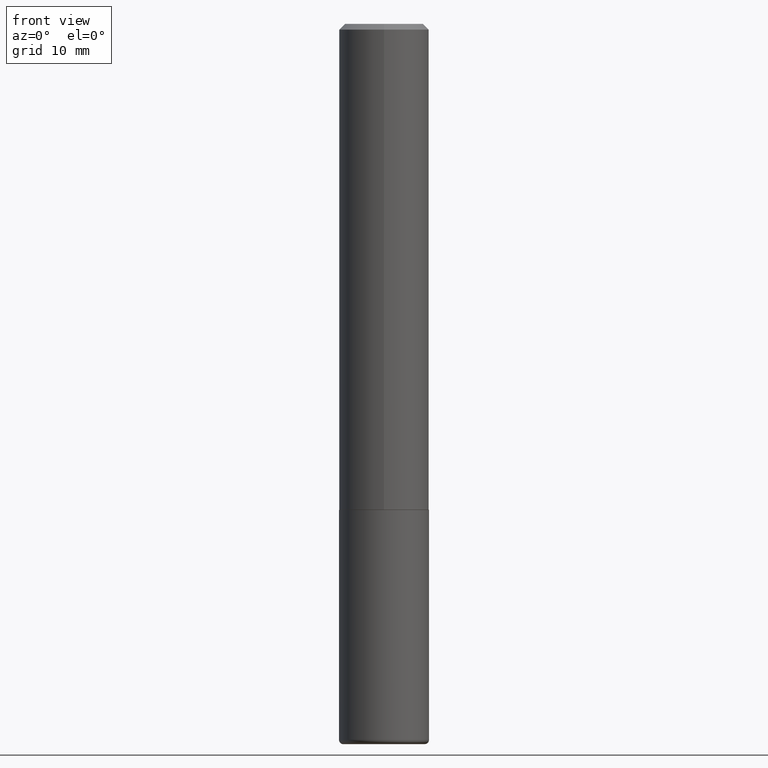
[diagram: clean part render]
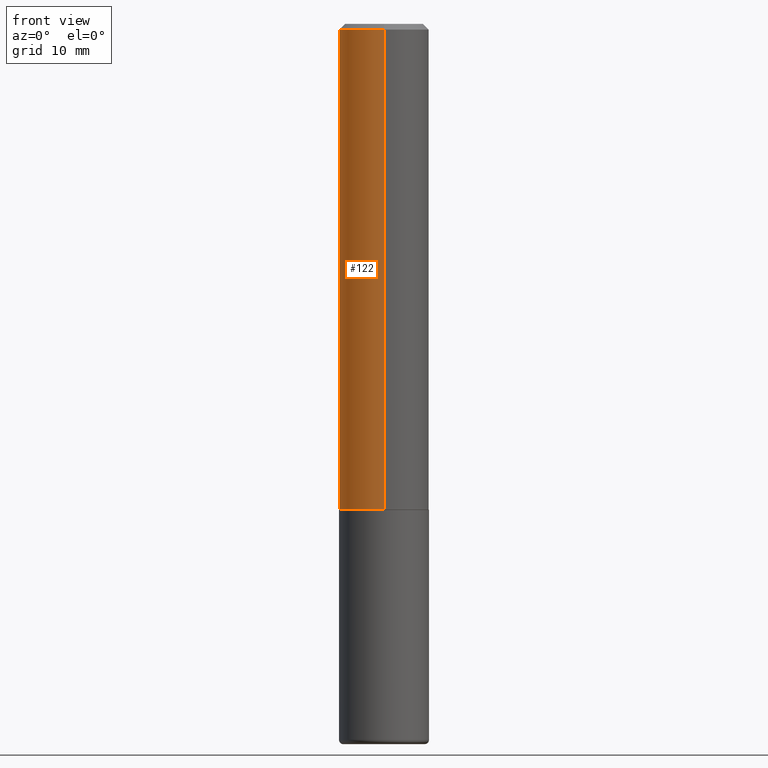
[diagram: same view with one face highlighted and labeled with its STEP entity id]
A machine part, front view. The second image highlights one B-rep face of the part: STEP entity #122.
In plain terms, the highlighted cylindrical surface (partial cylindrical patch) has radius 3.9688 mm, axis along (-0, 0, 1).
Its self-contained STEP definition (entity closure, byte-faithful):
#7 = AXIS2_PLACEMENT_3D ( 'NONE', #339, #233, #298 ) ;
#15 = ORIENTED_EDGE ( 'NONE', *, *, #342, .T. ) ;
#23 = CARTESIAN_POINT ( 'NONE',  ( -1.091087918388439730E-15, -0.1562500000000061617, -1.685999999999999721 ) ) ;
#78 = LINE ( 'NONE', #341, #232 ) ;
#79 = DIRECTION ( 'NONE',  ( -6.982962677686265133E-15, -1.000000000000000000, 3.496765431890256920E-15 ) ) ;
#80 = DIRECTION ( 'NONE',  ( -6.982962677686265922E-15, -1.000000000000000000, 3.496765431890250609E-15 ) ) ;
#96 = CARTESIAN_POINT ( 'NONE',  ( 1.110223024625157329E-15, 0.1562500000000001388, -5.454752658232202403E-16 ) ) ;
#102 = ORIENTED_EDGE ( 'NONE', *, *, #183, .F. ) ;
#113 = EDGE_CURVE ( 'NONE', #158, #220, #355, .T. ) ;
#122 = ADVANCED_FACE ( 'NONE', ( #209 ), #171, .T. ) ;
#158 = VERTEX_POINT ( 'NONE', #250 ) ;
#163 = AXIS2_PLACEMENT_3D ( 'NONE', #179, #388, #79 ) ;
#171 = CYLINDRICAL_SURFACE ( 'NONE', #7, 0.1562500000000001388 ) ;
#177 = DIRECTION ( 'NONE',  ( -2.445775803462607670E-29, 3.491041701268606382E-15, 1.000000000000000000 ) ) ;
#179 = CARTESIAN_POINT ( 'NONE',  ( 4.891551606925223922E-31, -6.982083402537224056E-17, -0.02000000000000003511 ) ) ;
#183 = EDGE_CURVE ( 'NONE', #223, #158, #380, .T. ) ;
#192 = ORIENTED_EDGE ( 'NONE', *, *, #113, .F. ) ;
#209 = FACE_OUTER_BOUND ( 'NONE', #376, .T. ) ;
#218 = CARTESIAN_POINT ( 'NONE',  ( -1.071952812151801215E-15, -0.1562500000000000833, -0.01999999999999948694 ) ) ;
#220 = VERTEX_POINT ( 'NONE', #218 ) ;
#222 = DIRECTION ( 'NONE',  ( -2.445775803462607670E-29, 3.491041701268606382E-15, 1.000000000000000000 ) ) ;
#223 = VERTEX_POINT ( 'NONE', #277 ) ;
#231 = VECTOR ( 'NONE', #222, 39.37007874015748143 ) ;
#232 = VECTOR ( 'NONE', #177, 39.37007874015748143 ) ;
#233 = DIRECTION ( 'NONE',  ( -2.445775803462607950E-29, 3.491041701268606382E-15, 1.000000000000000000 ) ) ;
#242 = CARTESIAN_POINT ( 'NONE',  ( 4.123578004637957798E-29, -5.885896308338871459E-15, -1.686000000000000165 ) ) ;
#244 = VERTEX_POINT ( 'NONE', #23 ) ;
#250 = CARTESIAN_POINT ( 'NONE',  ( 1.091087918388479568E-15, 0.1562499999999999445, -0.02000000000000057981 ) ) ;
#257 = AXIS2_PLACEMENT_3D ( 'NONE', #242, #400, #80 ) ;
#277 = CARTESIAN_POINT ( 'NONE',  ( 1.110223024625178629E-15, 0.1562499999999943934, -1.686000000000000831 ) ) ;
#293 = CIRCLE ( 'NONE', #257, 0.1562500000000002776 ) ;
#298 = DIRECTION ( 'NONE',  ( -6.982962677686265922E-15, -1.000000000000000000, 3.491041701268606382E-15 ) ) ;
#339 = CARTESIAN_POINT ( 'NONE',  ( 0.000000000000000000, 0.000000000000000000, 0.000000000000000000 ) ) ;
#341 = CARTESIAN_POINT ( 'NONE',  ( -1.091087918388479962E-15, -0.1562500000000001388, 5.454752658232202403E-16 ) ) ;
#342 = EDGE_CURVE ( 'NONE', #223, #244, #293, .T. ) ;
#355 = CIRCLE ( 'NONE', #163, 0.1562500000000000000 ) ;
#376 = EDGE_LOOP ( 'NONE', ( #102, #15, #385, #192 ) ) ;
#380 = LINE ( 'NONE', #96, #231 ) ;
#385 = ORIENTED_EDGE ( 'NONE', *, *, #414, .T. ) ;
#388 = DIRECTION ( 'NONE',  ( -2.445775803462607950E-29, 3.491041701268606382E-15, 1.000000000000000000 ) ) ;
#400 = DIRECTION ( 'NONE',  ( -2.445775803462607950E-29, 3.491041701268606382E-15, 1.000000000000000000 ) ) ;
#414 = EDGE_CURVE ( 'NONE', #244, #220, #78, .T. ) ;